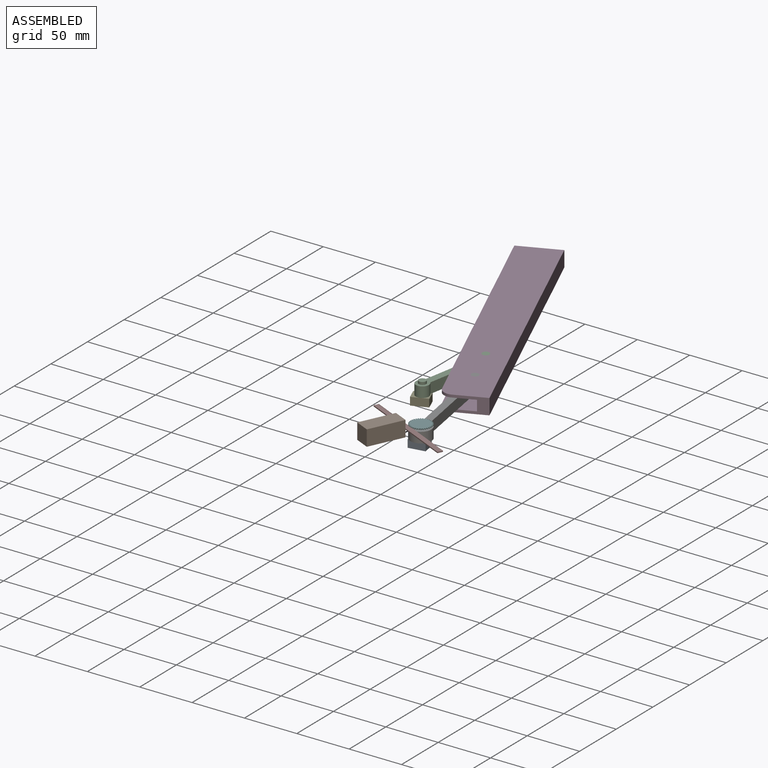
[diagram: assembled view]
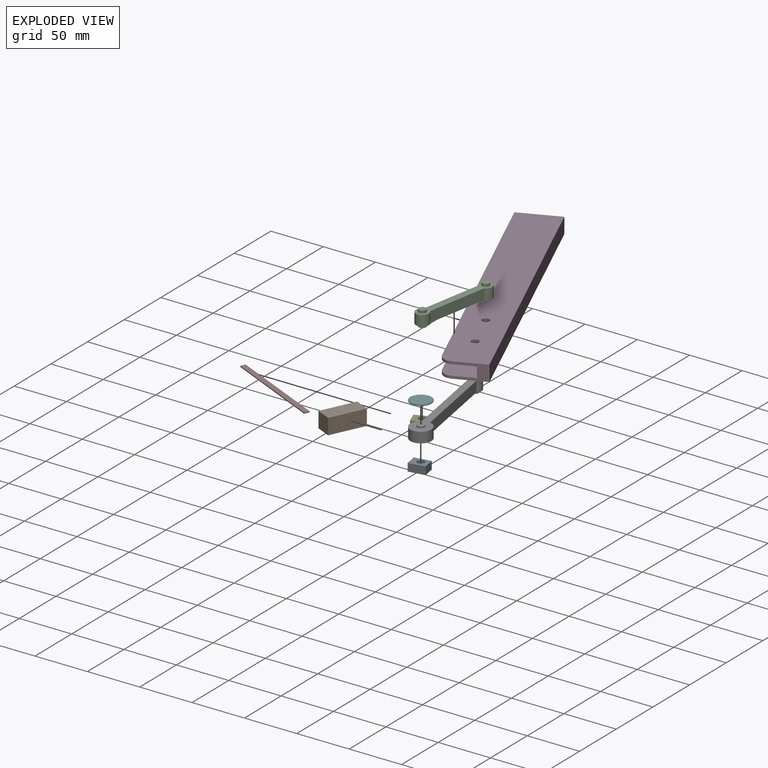
[diagram: exploded view]
GUIDED TOUR — MATED ASSEMBLY (Onshape document d15ea9145218a7e448abc43a, AutoMate assembly d15ea9145218a7e448abc43a_4488beb6bca7e58542a9b6cc_c849d50163a4104c69584336_default)

This assembly has 8 components, labeled P0..P7 below (a component is one placed occurrence of a part; the same part can appear more than once), held together by 6 mates. A mate is a constraint between two components; its type names the relative motion it leaves free:
  FASTENED — locks the two components together rigidly (no relative motion),
  REVOLUTE — leaves rotation about the listed axis free (a hinge),
  SLIDER — leaves translation along the listed axis free.
Axis/direction vectors are unit vectors and 'through' points are millimeter coordinates, both in the assembly's world frame.

MATES
  1. REVOLUTE "Revolute 2": P6 <-> P3, axis (0.000, 0.000, 1.000) through (446.84, 240.57, 74.81) mm
  2. REVOLUTE "Revolute 1": P2 <-> P3, axis (0.000, 0.000, 1.000) through (431.26, 277.41, 74.81) mm
  3. REVOLUTE "Revolute 3": P6 <-> P0, axis (0.000, 0.000, -1.000) through (464.00, 142.05, 64.81) mm
  4. FASTENED "Fastened 1": P5 <-> P6, direction (0.000, 0.000, -1.000) through (464.00, 142.05, 76.31) mm
  5. SLIDER "Slider 1": P7 <-> P1, axis (0.906, -0.423, 0.000) through (458.71, 128.70, 76.61) mm
  6. REVOLUTE "Revolute 4": P4 <-> P2, axis (0.000, 0.000, 1.000) through (418.91, 208.51, 64.81) mm

ASSEMBLY ORDER
  1. P2 — the base component [order verified]
  2. P3 [order verified]
  3. P4 [order verified]
  4. P6 [order verified]
  5. P0 [order verified]
  6. P7 [order verified]
  7. P1 [order verified]
  8. P5 [order verified]
Order-tag legend:
  [order verified] — this step's position reverses a verified removal order: the component was checked to insert without passing through the ones already placed.

Of the 8 components, 6 carry the full construction recipe — the FeatureScript program that regenerates the part's solid from scratch; the rest are supplied as boundary geometry only.
Each toured component is shown spotlighted twice — in the assembled view, then in the exploded view, where a leader line traces a displaced component back to its assembled socket (saturated green if recipe-attached, orange if geometry-only; every other component desaturated gray) — followed by its recipe or geometry summary and the mates that hold it.
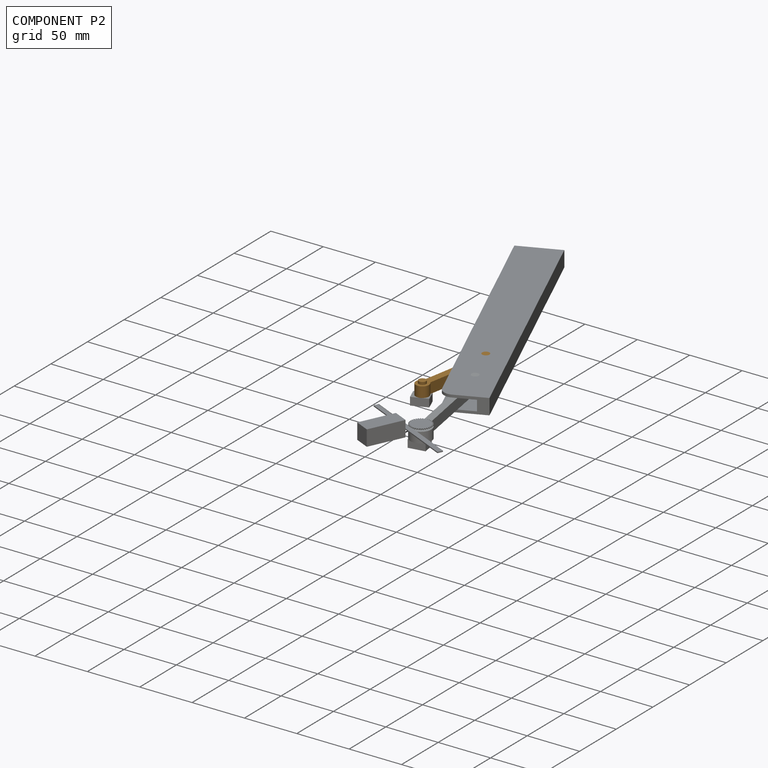
[diagram: component P2 — assembled]
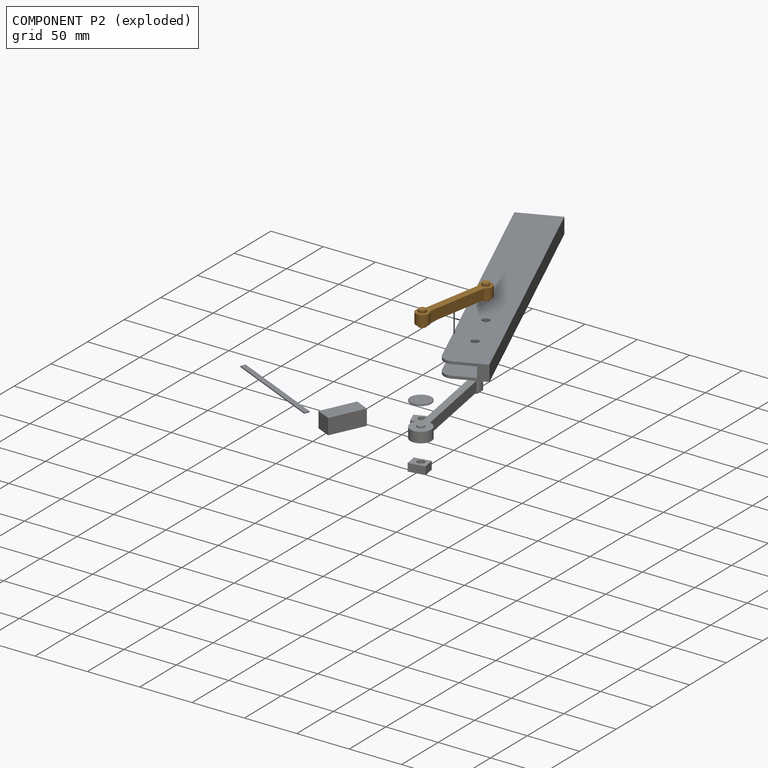
[diagram: component P2 — exploded]
COMPONENT P2 — geometry summary (no construction recipe available for this part):
  bounding box: 82.5 x 15.0 x 12.5 mm
  B-rep topology: 1 solid, 14 faces, 48 edges
  volume: 6912 mm^3 (45% of its bounding box)
  symmetry: 2-fold rotationally symmetric about the x axis; 2-fold rotationally symmetric about the y axis; 2-fold rotationally symmetric about the z axis; mirror-symmetric across its x mid-plane, y mid-plane, z mid-plane
Held by: REVOLUTE mate "Revolute 1" to P3; REVOLUTE mate "Revolute 4" to P4.
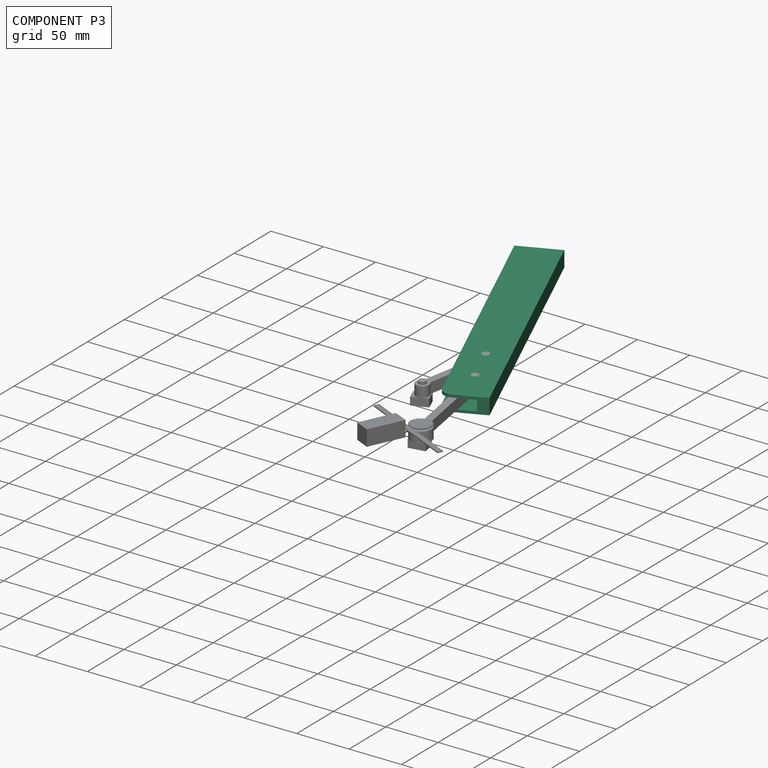
[diagram: component P3 — assembled]
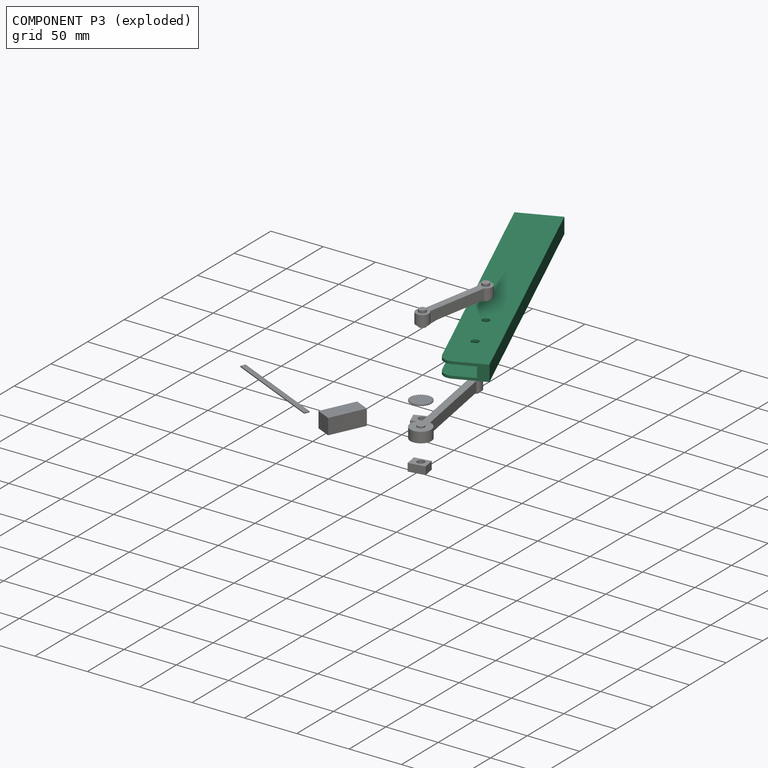
[diagram: component P3 — exploded]
COMPONENT P3 — recipe-attached (CADFS 00549046, mesh-verified: the recipe's output STEP matches this component's geometry to below the mesh-comparison resolution (tessellation chordal tolerance ~0.425 mm)).
Held by: REVOLUTE mate "Revolute 2" to P6; REVOLUTE mate "Revolute 1" to P2.
Construction recipe (FeatureScript — the CAD program that rebuilds this solid; sketch coordinates are in the units given by the * unit suffixes, e.g. mm):

FeatureScript 1511;
import(path : "onshape/std/geometry.fs", version : "1511.0");
import(path : "onshape/std/common.fs", version : "1511.0");
const mm = millimeter;
const VERTEX = EntityType.VERTEX;
const EDGE = EntityType.EDGE;
const FACE = EntityType.FACE;
const BODY = EntityType.BODY;
function v(x, y){return vector(x, y);}
function OD(order){return orderDisambiguation(order);}
function OSD(set){return originalSetDisambiguation(set);}
function TD(topology){return topologyDisambiguation(topology);}
function TDD(query){return trueDependencyDisambiguation(query);}
function sQuery(a, b, c) {return sketchEntityQuery(a, b, c);}

annotation { "Feature Type Name" : "Feature", "Feature Type Description" : "" }
export const myFeature = defineFeature(function(context is Context, id is Id, definition is map)
    precondition{}
    {
        {
            var Q0;
            Q0=qCreatedBy(makeId("Top.planeOp"),FACE);
            var sketch = newSketch(context, id + "F0", { "sketchPlane" : qUnion([Q0])});
            skLineSegment(sketch, "E0", {"start": v(-120.93, 67.52) * mm, "end": v(159.07, 67.52) * mm});
            skLineSegment(sketch, "E1", {"start": v(-120.93, 67.52) * mm, "end": v(-120.93, 27.52) * mm});
            skLineSegment(sketch, "E2", {"start": v(-120.93, 27.52) * mm, "end": v(159.07, 27.52) * mm});
            skLineSegment(sketch, "E3", {"start": v(159.07, 27.52) * mm, "end": v(159.07, 67.52) * mm});
            skLineSegment(sketch, "E4", {"start": v(39.07, 27.52) * mm, "end": v(39.07, 57.52) * mm});
            skLineSegment(sketch, "E5", {"start": v(39.07, 57.52) * mm, "end": v(159.07, 57.52) * mm});
            skSolve(sketch);
        }
        {
            var Q0;
            {var subQ4=sQuery(id+"F0.wireOp",EDGE,"E0");Q0=makeQuery(id+"F0.imprint","IMPRINT",FACE,{"disambiguationData":[TD([[makeQuery(id+"F0.imprint","IMPRINT",EDGE,{"derivedFrom":subQ4}),-1.0]])]});}
            extrude(context, id + "F1", {"entities" : qUnion([Q0]), "depth" : 15 * mm, "offsetDistance" : 25 * mm});
        }
        {
            var Q0;
            {var subQ3=sQuery(id+"F0.wireOp",EDGE,"E4");Q0=makeQuery(id+"F0.imprint","IMPRINT",FACE,{"disambiguationData":[TD([[makeQuery(id+"F0.imprint","IMPRINT",EDGE,{"derivedFrom":subQ3}),-1.0]])]});}
            extrude(context, id + "F2", {"entities" : qUnion([Q0]), "operationType" : NewBodyOperationType.ADD, "depth" : 2.5 * mm, "offsetDistance" : 25 * mm});
        }
        {
            var Q0;
            Q0=makeQuery(id+"F1.opExtrude","SWEPT_FACE",FACE,{"disambiguationData":[OSD([sQuery(id+"F0.wireOp",EDGE,"E5")])]});
            var sketch = newSketch(context, id + "F3", { "sketchPlane" : qUnion([Q0])});
            skLineSegment(sketch, "E6", {"start": v(159.07, 15) * mm, "end": v(159.07, 12.5) * mm});
            skLineSegment(sketch, "E7", {"start": v(159.07, 12.5) * mm, "end": v(39.07, 12.5) * mm});
            skLineSegment(sketch, "E8", {"start": v(39.07, 12.5) * mm, "end": v(39.07, 15) * mm});
            skLineSegment(sketch, "E9", {"start": v(39.07, 15) * mm, "end": v(159.07, 15) * mm});
            skLineSegment(sketch, "E10", {"start": v(39.07, 15) * mm, "end": v(159.07, 15) * mm, "construction": true});
            skSolve(sketch);
        }
        {
            var Q0;
            Q0=makeQuery(id+"F3.imprint","IMPRINT",FACE,{"disambiguationData":[TD([[makeQuery(id+"F3.imprint","IMPRINT",EDGE,{"derivedFrom":sQuery(id+"F3.wireOp",EDGE,"E6")}),-1.0]])]});
            extrude(context, id + "F4", {"entities" : qUnion([Q0]), "operationType" : NewBodyOperationType.ADD, "depth" : 30 * mm, "offsetDistance" : 25 * mm});
        }
        {
            var Q0;
            Q0=makeQuery(id+"F4.opExtrude","CAP_EDGE",EDGE,{"disambiguationData":[OSD([sQuery(id+"F3.wireOp",EDGE,"E6")])],"isStart":false});
            var Q1;
            Q1=makeQuery(id+"F2.opExtrude","SWEPT_EDGE",EDGE,{"disambiguationData":[OSD([sQuery(id+"F0.wireOp",EDGE,"E2"),sQuery(id+"F0.wireOp",EDGE,"E3")])]});
            fillet(context, id + "F5", {"entities" : qUnion([Q0, Q1]), "radius" : 10 * mm, "tangentPropagation" : true, "allowEdgeOverflow" : false});
        }
        {
            var Q0;
            Q0=makeQuery(id+"F4.boolean.opBoolean","MERGE",FACE,{"derivedFrom":[makeQuery(id+"F1.opExtrude","CAP_FACE",FACE,{"disambiguationData":[OSD([sQuery(id+"F0.wireOp",EDGE,"E0"),sQuery(id+"F0.wireOp",EDGE,"E1"),sQuery(id+"F0.wireOp",EDGE,"E2"),sQuery(id+"F0.wireOp",EDGE,"E3"),sQuery(id+"F0.wireOp",EDGE,"E4"),sQuery(id+"F0.wireOp",EDGE,"E5")])],"isStart":false}),makeQuery(id+"F4.opExtrude","SWEPT_FACE",FACE,{"disambiguationData":[OSD([sQuery(id+"F3.wireOp",EDGE,"E9")])]})]});
            var sketch = newSketch(context, id + "F6", { "sketchPlane" : qUnion([Q0])});
            skCircle(sketch, "E11", {"center": v(79.07, 47.52) * mm, "radius": 3.5 * mm});
            skCircle(sketch, "E12", {"center": v(119.07, 47.52) * mm, "radius": 3.5 * mm});
            skSolve(sketch);
        }
        {
            var Q0;
            Q0 = qSketchRegion(id + "F6", true);
            extrude(context, id + "F7", {"entities" : qUnion([Q0]), "operationType" : NewBodyOperationType.REMOVE, "oppositeDirection" : true, "depth" : 25 * mm, "offsetDistance" : 25 * mm});
        }
    });
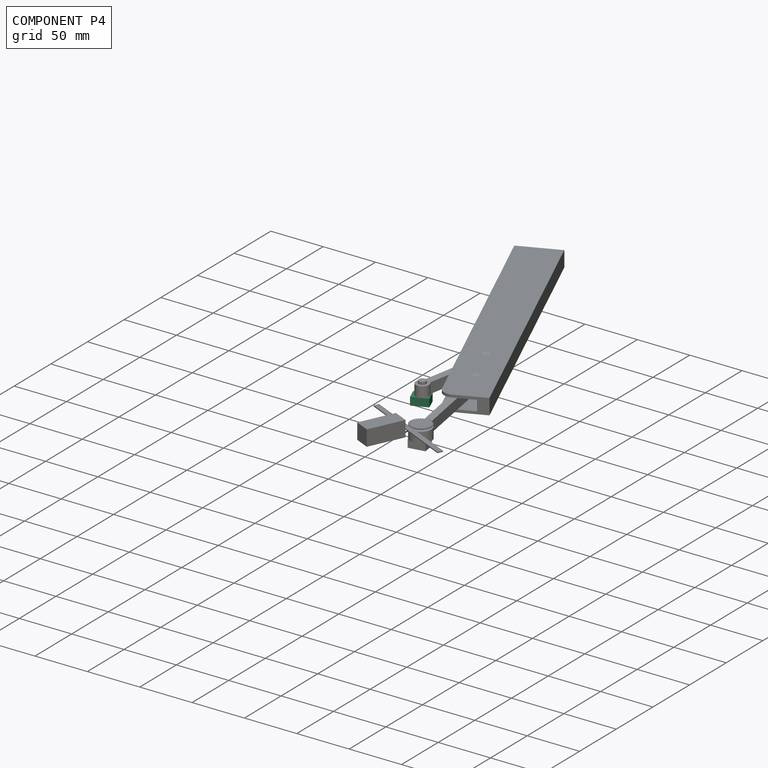
[diagram: component P4 — assembled]
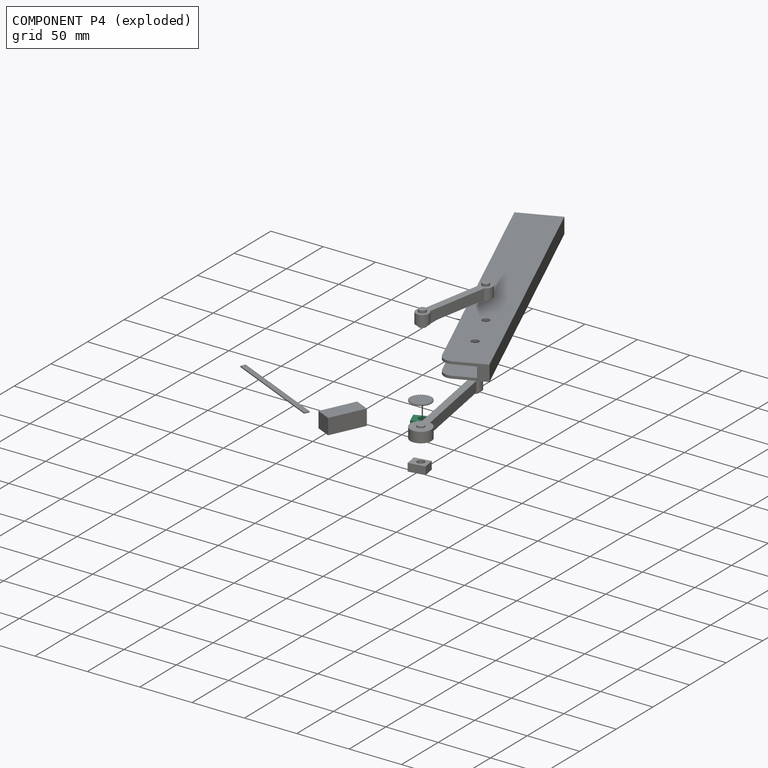
[diagram: component P4 — exploded]
COMPONENT P4 — same part as P0 (CADFS 00549053); its construction recipe is shown at P0.
Held by: REVOLUTE mate "Revolute 4" to P2.
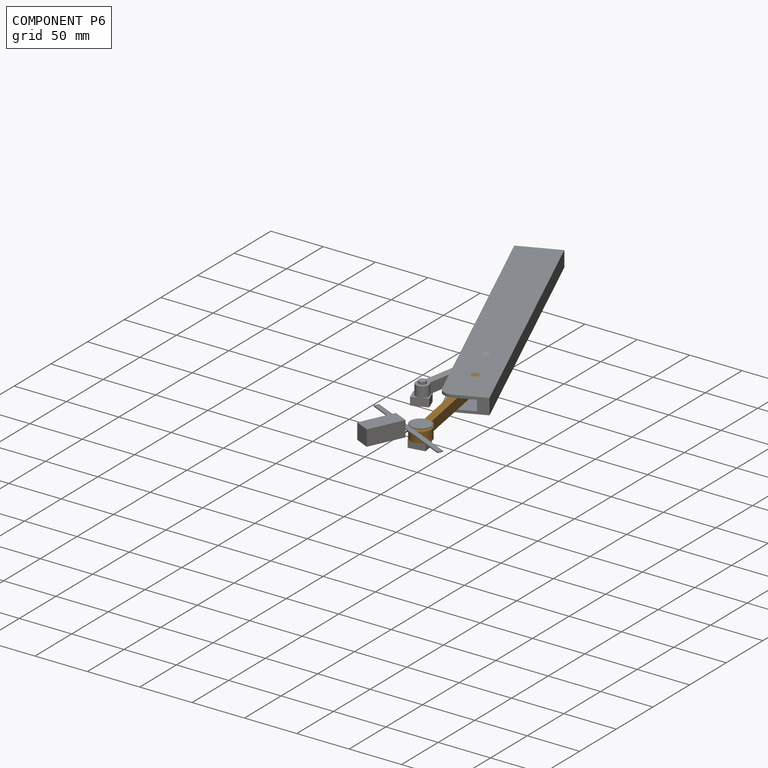
[diagram: component P6 — assembled]
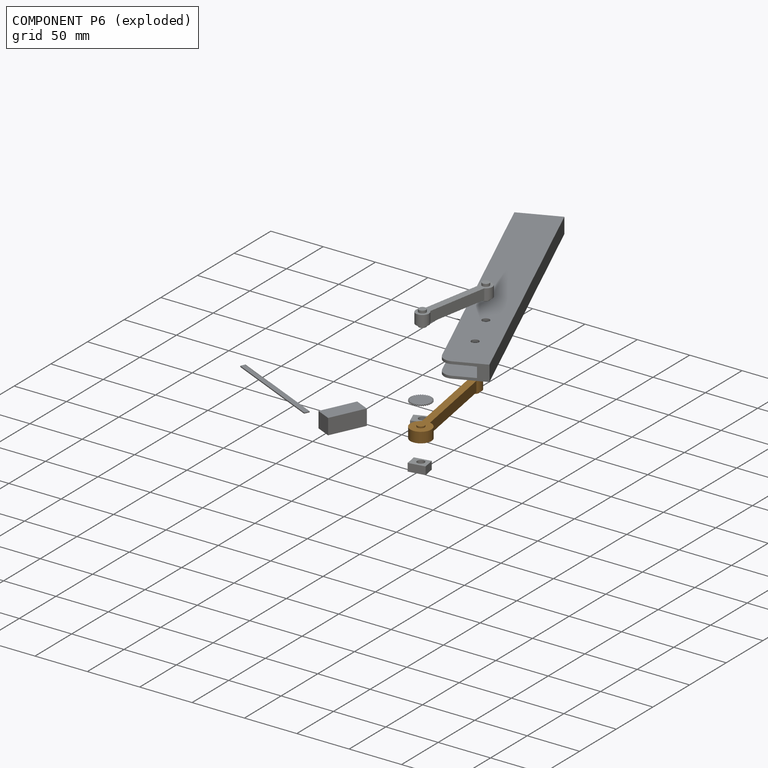
[diagram: component P6 — exploded]
COMPONENT P6 — geometry summary (no construction recipe available for this part):
  bounding box: 116.2 x 20.0 x 15.0 mm
  B-rep topology: 1 solid, 14 faces, 48 edges
  volume: 10616 mm^3 (30% of its bounding box)
  symmetry: mirror-symmetric across its y mid-plane
Held by: REVOLUTE mate "Revolute 2" to P3; REVOLUTE mate "Revolute 3" to P0; FASTENED mate "Fastened 1" to P5.
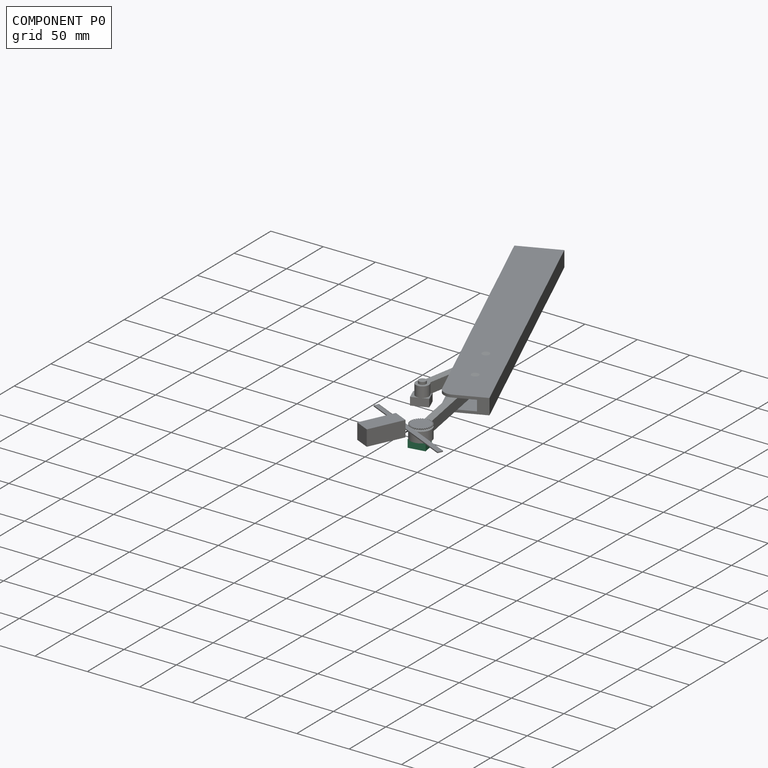
[diagram: component P0 — assembled]
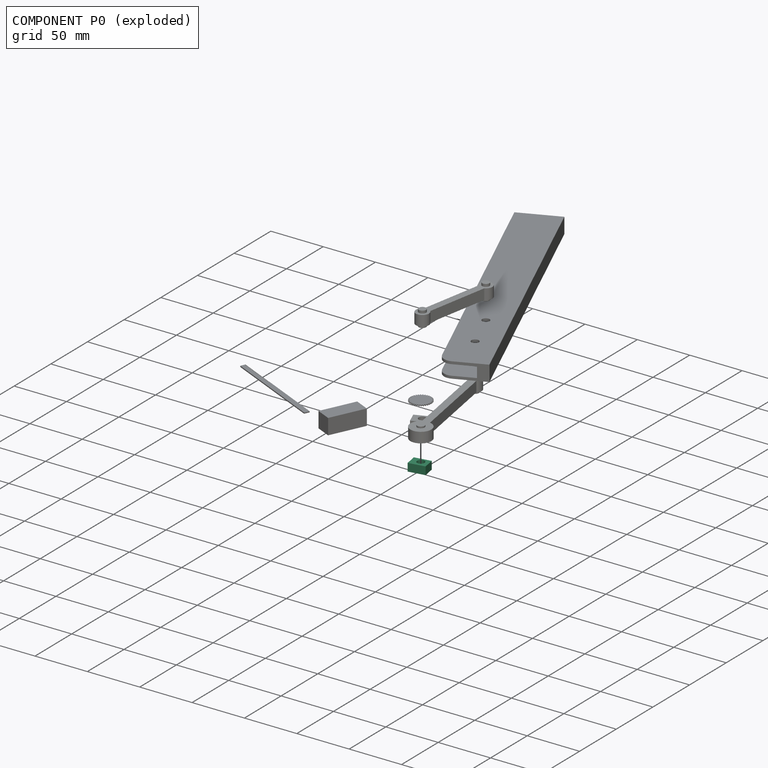
[diagram: component P0 — exploded]
COMPONENT P0 — recipe-attached (CADFS 00549053, mesh-verified: the recipe's output STEP matches this component's geometry to below the mesh-comparison resolution (tessellation chordal tolerance ~0.031 mm)).
Held by: REVOLUTE mate "Revolute 3" to P6.
Construction recipe (FeatureScript — the CAD program that rebuilds this solid; sketch coordinates are in the units given by the * unit suffixes, e.g. mm):

FeatureScript 1511;
import(path : "onshape/std/geometry.fs", version : "1511.0");
import(path : "onshape/std/common.fs", version : "1511.0");
const mm = millimeter;
const VERTEX = EntityType.VERTEX;
const EDGE = EntityType.EDGE;
const FACE = EntityType.FACE;
const BODY = EntityType.BODY;
function v(x, y){return vector(x, y);}
function OD(order){return orderDisambiguation(order);}
function OSD(set){return originalSetDisambiguation(set);}
function TD(topology){return topologyDisambiguation(topology);}
function TDD(query){return trueDependencyDisambiguation(query);}
function sQuery(a, b, c) {return sketchEntityQuery(a, b, c);}

annotation { "Feature Type Name" : "Feature", "Feature Type Description" : "" }
export const myFeature = defineFeature(function(context is Context, id is Id, definition is map)
    precondition{}
    {
        {
            var Q0;
            Q0=qCreatedBy(makeId("Top.planeOp"),FACE);
            var sketch = newSketch(context, id + "F0", { "sketchPlane" : qUnion([Q0])});
            skCircle(sketch, "E0", {"center": v(-34.33, 24.44) * mm, "radius": 3.5 * mm});
            skLineSegment(sketch, "E1.bottom", {"start": v(-42.87, 29.68) * mm, "end": v(-27.35, 29.68) * mm});
            skLineSegment(sketch, "E1.top", {"start": v(-42.87, 18.23) * mm, "end": v(-27.35, 18.23) * mm});
            skLineSegment(sketch, "E1.left", {"start": v(-42.87, 29.68) * mm, "end": v(-42.87, 18.23) * mm});
            skLineSegment(sketch, "E1.right", {"start": v(-27.35, 29.68) * mm, "end": v(-27.35, 18.23) * mm});
            skSolve(sketch);
        }
        {
            var Q0;
            Q0=makeQuery(id+"F0.imprint","IMPRINT",FACE,{"disambiguationData":[TD([[makeQuery(id+"F0.imprint","IMPRINT",EDGE,{"derivedFrom":sQuery(id+"F0.wireOp",EDGE,"E0")}),-1.0]])]});
            extrude(context, id + "F1", {"entities" : qUnion([Q0]), "endBound" : BoundingType.SYMMETRIC, "depth" : 7.5 * mm, "offsetDistance" : 25 * mm});
        }
    });
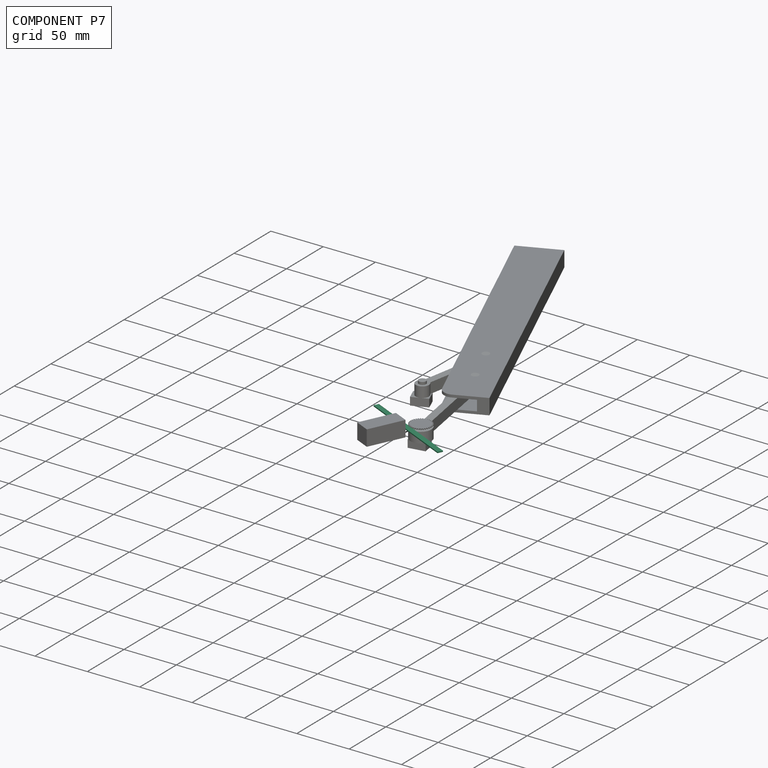
[diagram: component P7 — assembled]
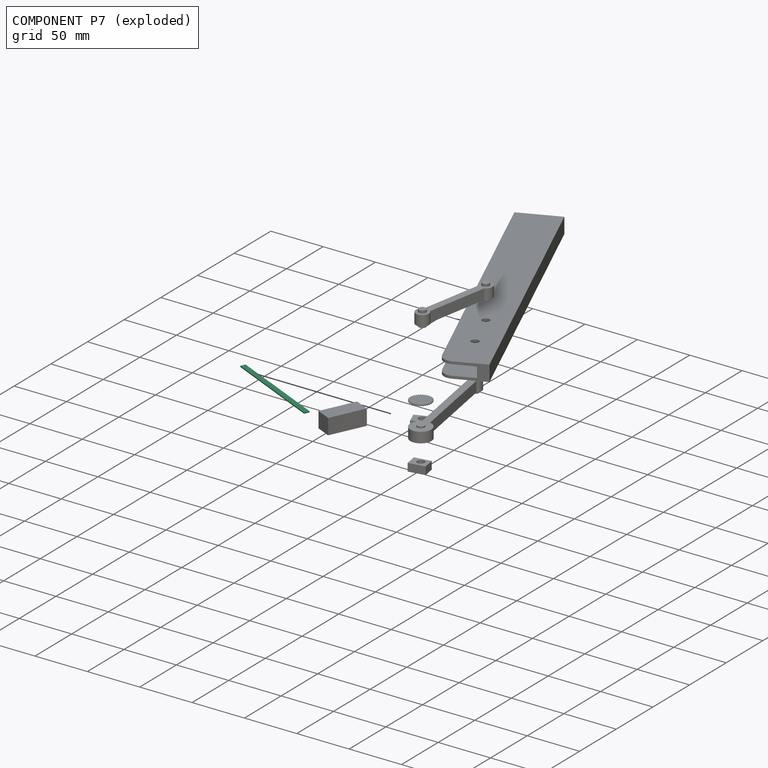
[diagram: component P7 — exploded]
COMPONENT P7 — recipe-attached (CADFS 00549051, mesh-verified: the recipe's output STEP matches this component's geometry to below the mesh-comparison resolution (tessellation chordal tolerance ~0.15 mm)).
Held by: SLIDER mate "Slider 1" to P1.
Construction recipe (FeatureScript — the CAD program that rebuilds this solid; sketch coordinates are in the units given by the * unit suffixes, e.g. mm):

FeatureScript 1511;
import(path : "onshape/std/geometry.fs", version : "1511.0");
import(path : "onshape/std/common.fs", version : "1511.0");
const mm = millimeter;
const VERTEX = EntityType.VERTEX;
const EDGE = EntityType.EDGE;
const FACE = EntityType.FACE;
const BODY = EntityType.BODY;
function v(x, y){return vector(x, y);}
function OD(order){return orderDisambiguation(order);}
function OSD(set){return originalSetDisambiguation(set);}
function TD(topology){return topologyDisambiguation(topology);}
function TDD(query){return trueDependencyDisambiguation(query);}
function sQuery(a, b, c) {return sketchEntityQuery(a, b, c);}

annotation { "Feature Type Name" : "Feature", "Feature Type Description" : "" }
export const myFeature = defineFeature(function(context is Context, id is Id, definition is map)
    precondition{}
    {
        {
            var Q0;
            Q0=qCreatedBy(makeId("Top.planeOp"),FACE);
            var sketch = newSketch(context, id + "F0", { "sketchPlane" : qUnion([Q0])});
            skLineSegment(sketch, "E0.bottom", {"start": v(-60.96, 22.46) * mm, "end": v(-55.96, 22.46) * mm});
            skLineSegment(sketch, "E0.top", {"start": v(-60.96, -77.54) * mm, "end": v(-55.96, -77.54) * mm});
            skLineSegment(sketch, "E0.left", {"start": v(-60.96, 22.46) * mm, "end": v(-60.96, -77.54) * mm});
            skLineSegment(sketch, "E0.right", {"start": v(-55.96, 22.46) * mm, "end": v(-55.96, -77.54) * mm});
            skSolve(sketch);
        }
        {
            var Q0;
            Q0 = qSketchRegion(id + "F0", true);
            extrude(context, id + "F1", {"entities" : qUnion([Q0]), "endBound" : BoundingType.SYMMETRIC, "depth" : 1 * mm, "offsetDistance" : 25 * mm});
        }
        {
            var Q0;
            Q0=makeQuery(id+"F1.opExtrude","CAP_FACE",FACE,{"disambiguationData":[OSD([sQuery(id+"F0.wireOp",EDGE,"E0.bottom"),sQuery(id+"F0.wireOp",EDGE,"E0.top"),sQuery(id+"F0.wireOp",EDGE,"E0.left"),sQuery(id+"F0.wireOp",EDGE,"E0.right")])],"isStart":false});
            var sketch = newSketch(context, id + "F2", { "sketchPlane" : qUnion([Q0])});
            skLineSegment(sketch, "E1", {"start": v(-56.84, 22.18) * mm, "end": v(-56.84, 21.6) * mm});
            skLineSegment(sketch, "E2", {"start": v(-56.84, 21.6) * mm, "end": v(-55.96, 21.32) * mm});
            skLineSegment(sketch, "E3", {"start": v(-56.84, 22.18) * mm, "end": v(-55.96, 22.45) * mm});
            skLineSegment(sketch, "E4.MirrorCS", {"start": v(-56.84, 21.06) * mm, "end": v(-55.96, 21.32) * mm});
            skLineSegment(sketch, "E5.MirrorCS", {"start": v(-56.84, 20.47) * mm, "end": v(-56.84, 21.06) * mm});
            skLineSegment(sketch, "E6.MirrorCS", {"start": v(-56.84, 20.47) * mm, "end": v(-55.96, 20.2) * mm});
            skLineSegment(sketch, "E7.MirrorCS", {"start": v(-56.84, 19.93) * mm, "end": v(-55.96, 20.2) * mm});
            skLineSegment(sketch, "E8.MirrorCS", {"start": v(-56.84, 19.93) * mm, "end": v(-56.84, 19.34) * mm});
            skLineSegment(sketch, "E9.MirrorCS", {"start": v(-56.84, 19.34) * mm, "end": v(-55.96, 19.08) * mm});
            skLineSegment(sketch, "E10.MirrorCS", {"start": v(-56.84, 18.81) * mm, "end": v(-55.96, 19.08) * mm});
            skLineSegment(sketch, "E11.MirrorCS", {"start": v(-56.84, 18.22) * mm, "end": v(-56.84, 18.81) * mm});
            skLineSegment(sketch, "E12.MirrorCS", {"start": v(-56.84, 18.22) * mm, "end": v(-55.96, 17.95) * mm});
            skLineSegment(sketch, "E13.MirrorCS", {"start": v(-56.84, 14.85) * mm, "end": v(-55.96, 14.58) * mm});
            skLineSegment(sketch, "E14.MirrorCS", {"start": v(-56.84, 13.73) * mm, "end": v(-55.96, 13.46) * mm});
            skLineSegment(sketch, "E15.MirrorCS", {"start": v(-56.84, 15.97) * mm, "end": v(-55.96, 15.7) * mm});
            skLineSegment(sketch, "E16.MirrorCS", {"start": v(-56.84, 14.32) * mm, "end": v(-55.96, 14.58) * mm});
            skLineSegment(sketch, "E17.MirrorCS", {"start": v(-56.84, 13.73) * mm, "end": v(-56.84, 14.32) * mm});
            skLineSegment(sketch, "E18.MirrorCS", {"start": v(-56.84, 17.1) * mm, "end": v(-55.96, 16.83) * mm});
            skLineSegment(sketch, "E19.MirrorCS", {"start": v(-56.84, 15.97) * mm, "end": v(-56.84, 16.56) * mm});
            skLineSegment(sketch, "E20.MirrorCS", {"start": v(-56.84, 15.44) * mm, "end": v(-55.96, 15.7) * mm});
            skLineSegment(sketch, "E21.MirrorCS", {"start": v(-56.84, 17.69) * mm, "end": v(-55.96, 17.95) * mm});
            skLineSegment(sketch, "E22.MirrorCS", {"start": v(-56.84, 16.56) * mm, "end": v(-55.96, 16.83) * mm});
            skLineSegment(sketch, "E23.MirrorCS", {"start": v(-56.84, 15.44) * mm, "end": v(-56.84, 14.85) * mm});
            skLineSegment(sketch, "E24.MirrorCS", {"start": v(-56.84, 17.69) * mm, "end": v(-56.84, 17.1) * mm});
            skLineSegment(sketch, "E25.MirrorCS", {"start": v(-56.84, 9.23) * mm, "end": v(-56.84, 9.82) * mm});
            skLineSegment(sketch, "E26.MirrorCS", {"start": v(-56.84, 5.86) * mm, "end": v(-55.96, 5.6) * mm});
            skLineSegment(sketch, "E27.MirrorCS", {"start": v(-56.84, 4.74) * mm, "end": v(-55.96, 4.47) * mm});
            skLineSegment(sketch, "E28.MirrorCS", {"start": v(-56.84, 5.33) * mm, "end": v(-55.96, 5.6) * mm});
            skLineSegment(sketch, "E29.MirrorCS", {"start": v(-56.84, 4.74) * mm, "end": v(-56.84, 5.33) * mm});
            skLineSegment(sketch, "E30.MirrorCS", {"start": v(-56.84, 12.6) * mm, "end": v(-55.96, 12.34) * mm});
            skLineSegment(sketch, "E31.MirrorCS", {"start": v(-56.84, 10.95) * mm, "end": v(-55.96, 11.21) * mm});
            skLineSegment(sketch, "E32.MirrorCS", {"start": v(-56.84, 13.2) * mm, "end": v(-55.96, 13.46) * mm});
            skLineSegment(sketch, "E33.MirrorCS", {"start": v(-56.84, 11.48) * mm, "end": v(-55.96, 11.21) * mm});
            skLineSegment(sketch, "E34.MirrorCS", {"start": v(-56.84, 9.82) * mm, "end": v(-55.96, 10.1) * mm});
            skLineSegment(sketch, "E35.MirrorCS", {"start": v(-56.84, 10.36) * mm, "end": v(-55.96, 10.1) * mm});
            skLineSegment(sketch, "E36.MirrorCS", {"start": v(-56.84, 6.45) * mm, "end": v(-55.96, 6.72) * mm});
            skLineSegment(sketch, "E37.MirrorCS", {"start": v(-56.84, 7.58) * mm, "end": v(-55.96, 7.84) * mm});
            skLineSegment(sketch, "E38.MirrorCS", {"start": v(-56.84, 6.99) * mm, "end": v(-55.96, 6.72) * mm});
            skLineSegment(sketch, "E39.MirrorCS", {"start": v(-56.84, 8.11) * mm, "end": v(-55.96, 7.84) * mm});
            skLineSegment(sketch, "E40.MirrorCS", {"start": v(-56.84, 10.95) * mm, "end": v(-56.84, 10.36) * mm});
            skLineSegment(sketch, "E41.MirrorCS", {"start": v(-56.84, 12.07) * mm, "end": v(-55.96, 12.34) * mm});
            skLineSegment(sketch, "E42.MirrorCS", {"start": v(-56.84, 8.7) * mm, "end": v(-56.84, 8.11) * mm});
            skLineSegment(sketch, "E43.MirrorCS", {"start": v(-56.84, 8.7) * mm, "end": v(-55.96, 8.97) * mm});
            skLineSegment(sketch, "E44.MirrorCS", {"start": v(-56.84, 6.99) * mm, "end": v(-56.84, 7.58) * mm});
            skLineSegment(sketch, "E45.MirrorCS", {"start": v(-56.84, 9.23) * mm, "end": v(-55.96, 8.97) * mm});
            skLineSegment(sketch, "E46.MirrorCS", {"start": v(-56.84, 6.45) * mm, "end": v(-56.84, 5.86) * mm});
            skLineSegment(sketch, "E47.MirrorCS", {"start": v(-56.84, 11.48) * mm, "end": v(-56.84, 12.07) * mm});
            skLineSegment(sketch, "E48.MirrorCS", {"start": v(-56.84, 13.2) * mm, "end": v(-56.84, 12.6) * mm});
            skLineSegment(sketch, "E49.MirrorCS", {"start": v(-56.84, -11.52) * mm, "end": v(-56.84, -12.1) * mm});
            skLineSegment(sketch, "E50.MirrorCS", {"start": v(-56.84, -9.86) * mm, "end": v(-55.96, -10.13) * mm});
            skLineSegment(sketch, "E51.MirrorCS", {"start": v(-56.84, -10.4) * mm, "end": v(-55.96, -10.13) * mm});
            skLineSegment(sketch, "E52.MirrorCS", {"start": v(-56.84, -10.99) * mm, "end": v(-56.84, -10.4) * mm});
            skLineSegment(sketch, "E53.MirrorCS", {"start": v(-56.84, -11.52) * mm, "end": v(-55.96, -11.25) * mm});
            skLineSegment(sketch, "E54.MirrorCS", {"start": v(-56.84, -10.99) * mm, "end": v(-55.96, -11.25) * mm});
            skLineSegment(sketch, "E55.MirrorCS", {"start": v(-56.84, -12.1) * mm, "end": v(-55.96, -12.38) * mm});
            skLineSegment(sketch, "E56.MirrorCS", {"start": v(-56.84, -13.23) * mm, "end": v(-55.96, -13.5) * mm});
            skLineSegment(sketch, "E57.MirrorCS", {"start": v(-56.84, 2.5) * mm, "end": v(-55.96, 2.23) * mm});
            skLineSegment(sketch, "E58.MirrorCS", {"start": v(-56.84, -6.5) * mm, "end": v(-55.96, -6.76) * mm});
            skLineSegment(sketch, "E59.MirrorCS", {"start": v(-56.84, -9.27) * mm, "end": v(-56.84, -9.86) * mm});
            skLineSegment(sketch, "E60.MirrorCS", {"start": v(-56.84, -12.64) * mm, "end": v(-55.96, -12.38) * mm});
            skLineSegment(sketch, "E61.MirrorCS", {"start": v(-56.84, 4.2) * mm, "end": v(-55.96, 4.47) * mm});
            skLineSegment(sketch, "E62.MirrorCS", {"start": v(-56.84, 0.25) * mm, "end": v(-55.96, -0.02) * mm});
            skLineSegment(sketch, "E63.MirrorCS", {"start": v(-56.84, -13.23) * mm, "end": v(-56.84, -12.64) * mm});
            skLineSegment(sketch, "E64.MirrorCS", {"start": v(-56.84, -5.37) * mm, "end": v(-55.96, -5.64) * mm});
            skLineSegment(sketch, "E65.MirrorCS", {"start": v(-56.84, -0.29) * mm, "end": v(-55.96, -0.02) * mm});
            skLineSegment(sketch, "E66.MirrorCS", {"start": v(-56.84, 4.2) * mm, "end": v(-56.84, 3.62) * mm});
            skLineSegment(sketch, "E67.MirrorCS", {"start": v(-56.84, -3.12) * mm, "end": v(-55.96, -3.39) * mm});
            skLineSegment(sketch, "E68.MirrorCS", {"start": v(-56.84, -0.29) * mm, "end": v(-56.84, -0.88) * mm});
            skLineSegment(sketch, "E69.MirrorCS", {"start": v(-56.84, 1.96) * mm, "end": v(-55.96, 2.23) * mm});
            skLineSegment(sketch, "E70.MirrorCS", {"start": v(-56.84, -2) * mm, "end": v(-55.96, -2.27) * mm});
            skLineSegment(sketch, "E71.MirrorCS", {"start": v(-56.84, -7.62) * mm, "end": v(-55.96, -7.88) * mm});
            skLineSegment(sketch, "E72.MirrorCS", {"start": v(-56.84, -7.03) * mm, "end": v(-56.84, -7.62) * mm});
            skLineSegment(sketch, "E73.MirrorCS", {"start": v(-56.84, -2.53) * mm, "end": v(-56.84, -3.12) * mm});
            skLineSegment(sketch, "E74.MirrorCS", {"start": v(-56.84, -0.88) * mm, "end": v(-55.96, -1.14) * mm});
            skLineSegment(sketch, "E75.MirrorCS", {"start": v(-56.84, -8.15) * mm, "end": v(-55.96, -7.88) * mm});
            skLineSegment(sketch, "E76.MirrorCS", {"start": v(-56.84, 1.96) * mm, "end": v(-56.84, 1.37) * mm});
            skLineSegment(sketch, "E77.MirrorCS", {"start": v(-56.84, 3.62) * mm, "end": v(-55.96, 3.35) * mm});
            skLineSegment(sketch, "E78.MirrorCS", {"start": v(-56.84, -2) * mm, "end": v(-56.84, -1.4) * mm});
            skLineSegment(sketch, "E79.MirrorCS", {"start": v(-56.84, -4.78) * mm, "end": v(-56.84, -5.37) * mm});
            skLineSegment(sketch, "E80.MirrorCS", {"start": v(-56.84, -2.53) * mm, "end": v(-55.96, -2.27) * mm});
            skLineSegment(sketch, "E81.MirrorCS", {"start": v(-56.84, -8.74) * mm, "end": v(-56.84, -8.15) * mm});
            skLineSegment(sketch, "E82.MirrorCS", {"start": v(-56.84, -1.4) * mm, "end": v(-55.96, -1.14) * mm});
            skLineSegment(sketch, "E83.MirrorCS", {"start": v(-56.84, -3.66) * mm, "end": v(-55.96, -3.39) * mm});
            skLineSegment(sketch, "E84.MirrorCS", {"start": v(-56.84, -7.03) * mm, "end": v(-55.96, -6.76) * mm});
            skLineSegment(sketch, "E85.MirrorCS", {"start": v(-56.84, -4.25) * mm, "end": v(-56.84, -3.66) * mm});
            skLineSegment(sketch, "E86.MirrorCS", {"start": v(-56.84, 2.5) * mm, "end": v(-56.84, 3.08) * mm});
            skLineSegment(sketch, "E87.MirrorCS", {"start": v(-56.84, -6.5) * mm, "end": v(-56.84, -5.9) * mm});
            skLineSegment(sketch, "E88.MirrorCS", {"start": v(-56.84, -4.25) * mm, "end": v(-55.96, -4.51) * mm});
            skLineSegment(sketch, "E89.MirrorCS", {"start": v(-56.84, 0.84) * mm, "end": v(-55.96, 1.1) * mm});
            skLineSegment(sketch, "E90.MirrorCS", {"start": v(-56.84, -8.74) * mm, "end": v(-55.96, -9) * mm});
            skLineSegment(sketch, "E91.MirrorCS", {"start": v(-56.84, -5.9) * mm, "end": v(-55.96, -5.64) * mm});
            skLineSegment(sketch, "E92.MirrorCS", {"start": v(-56.84, -4.78) * mm, "end": v(-55.96, -4.51) * mm});
            skLineSegment(sketch, "E93.MirrorCS", {"start": v(-56.84, 3.08) * mm, "end": v(-55.96, 3.35) * mm});
            skLineSegment(sketch, "E94.MirrorCS", {"start": v(-56.84, 0.25) * mm, "end": v(-56.84, 0.84) * mm});
            skLineSegment(sketch, "E95.MirrorCS", {"start": v(-56.84, -9.27) * mm, "end": v(-55.96, -9) * mm});
            skLineSegment(sketch, "E96.MirrorCS", {"start": v(-56.84, 1.37) * mm, "end": v(-55.96, 1.1) * mm});
            skSolve(sketch);
        }
        {
            var Q0;
            Q0=makeQuery(id+"F2.imprint","IMPRINT",FACE,{"disambiguationData":[TD([[makeQuery(id+"F2.imprint","IMPRINT",EDGE,{"derivedFrom":sQuery(id+"F2.wireOp",EDGE,"E1")}),1.0]])]});
            var Q1;
            {var subQ0=sQuery(id+"F2.wireOp",EDGE,"E4.MirrorCS");Q1=makeQuery(id+"F2.imprint","IMPRINT",FACE,{"disambiguationData":[TD([[makeQuery(id+"F2.imprint","IMPRINT",EDGE,{"derivedFrom":subQ0}),-1.0]])]});}
            var Q2;
            {var subQ0=sQuery(id+"F2.wireOp",EDGE,"E7.MirrorCS");Q2=makeQuery(id+"F2.imprint","IMPRINT",FACE,{"disambiguationData":[TD([[makeQuery(id+"F2.imprint","IMPRINT",EDGE,{"derivedFrom":subQ0}),-1.0]])]});}
            var Q3;
            {var subQ0=sQuery(id+"F2.wireOp",EDGE,"E10.MirrorCS");Q3=makeQuery(id+"F2.imprint","IMPRINT",FACE,{"disambiguationData":[TD([[makeQuery(id+"F2.imprint","IMPRINT",EDGE,{"derivedFrom":subQ0}),-1.0]])]});}
            var Q4;
            {var subQ0=sQuery(id+"F2.wireOp",EDGE,"E18.MirrorCS");Q4=makeQuery(id+"F2.imprint","IMPRINT",FACE,{"disambiguationData":[TD([[makeQuery(id+"F2.imprint","IMPRINT",EDGE,{"derivedFrom":subQ0}),1.0]])]});}
            var Q5;
            {var subQ0=sQuery(id+"F2.wireOp",EDGE,"E15.MirrorCS");Q5=makeQuery(id+"F2.imprint","IMPRINT",FACE,{"disambiguationData":[TD([[makeQuery(id+"F2.imprint","IMPRINT",EDGE,{"derivedFrom":subQ0}),1.0]])]});}
            var Q6;
            {var subQ0=sQuery(id+"F2.wireOp",EDGE,"E13.MirrorCS");Q6=makeQuery(id+"F2.imprint","IMPRINT",FACE,{"disambiguationData":[TD([[makeQuery(id+"F2.imprint","IMPRINT",EDGE,{"derivedFrom":subQ0}),1.0]])]});}
            var Q7;
            {var subQ0=sQuery(id+"F2.wireOp",EDGE,"E14.MirrorCS");Q7=makeQuery(id+"F2.imprint","IMPRINT",FACE,{"disambiguationData":[TD([[makeQuery(id+"F2.imprint","IMPRINT",EDGE,{"derivedFrom":subQ0}),1.0]])]});}
            var Q8;
            {var subQ0=sQuery(id+"F2.wireOp",EDGE,"E30.MirrorCS");Q8=makeQuery(id+"F2.imprint","IMPRINT",FACE,{"disambiguationData":[TD([[makeQuery(id+"F2.imprint","IMPRINT",EDGE,{"derivedFrom":subQ0}),1.0]])]});}
            var Q9;
            {var subQ0=sQuery(id+"F2.wireOp",EDGE,"E33.MirrorCS");Q9=makeQuery(id+"F2.imprint","IMPRINT",FACE,{"disambiguationData":[TD([[makeQuery(id+"F2.imprint","IMPRINT",EDGE,{"derivedFrom":subQ0}),1.0]])]});}
            var Q10;
            {var subQ0=sQuery(id+"F2.wireOp",EDGE,"E31.MirrorCS");Q10=makeQuery(id+"F2.imprint","IMPRINT",FACE,{"disambiguationData":[TD([[makeQuery(id+"F2.imprint","IMPRINT",EDGE,{"derivedFrom":subQ0}),-1.0]])]});}
            var Q11;
            Q11=makeQuery(id+"F2.imprint","IMPRINT",FACE,{"disambiguationData":[TD([[makeQuery(id+"F2.imprint","IMPRINT",EDGE,{"derivedFrom":sQuery(id+"F2.wireOp",EDGE,"E25.MirrorCS")}),-1.0]])]});
            var Q12;
            {var subQ0=sQuery(id+"F2.wireOp",EDGE,"E39.MirrorCS");Q12=makeQuery(id+"F2.imprint","IMPRINT",FACE,{"disambiguationData":[TD([[makeQuery(id+"F2.imprint","IMPRINT",EDGE,{"derivedFrom":subQ0}),1.0]])]});}
            var Q13;
            {var subQ0=sQuery(id+"F2.wireOp",EDGE,"E37.MirrorCS");Q13=makeQuery(id+"F2.imprint","IMPRINT",FACE,{"disambiguationData":[TD([[makeQuery(id+"F2.imprint","IMPRINT",EDGE,{"derivedFrom":subQ0}),-1.0]])]});}
            var Q14;
            {var subQ0=sQuery(id+"F2.wireOp",EDGE,"E26.MirrorCS");Q14=makeQuery(id+"F2.imprint","IMPRINT",FACE,{"disambiguationData":[TD([[makeQuery(id+"F2.imprint","IMPRINT",EDGE,{"derivedFrom":subQ0}),1.0]])]});}
            var Q15;
            {var subQ0=sQuery(id+"F2.wireOp",EDGE,"E27.MirrorCS");Q15=makeQuery(id+"F2.imprint","IMPRINT",FACE,{"disambiguationData":[TD([[makeQuery(id+"F2.imprint","IMPRINT",EDGE,{"derivedFrom":subQ0}),1.0]])]});}
            var Q16;
            {var subQ0=sQuery(id+"F2.wireOp",EDGE,"E61.MirrorCS");Q16=makeQuery(id+"F2.imprint","IMPRINT",FACE,{"disambiguationData":[TD([[makeQuery(id+"F2.imprint","IMPRINT",EDGE,{"derivedFrom":subQ0}),-1.0]])]});}
            var Q17;
            {var subQ0=sQuery(id+"F2.wireOp",EDGE,"E57.MirrorCS");Q17=makeQuery(id+"F2.imprint","IMPRINT",FACE,{"disambiguationData":[TD([[makeQuery(id+"F2.imprint","IMPRINT",EDGE,{"derivedFrom":subQ0}),1.0]])]});}
            var Q18;
            {var subQ0=sQuery(id+"F2.wireOp",EDGE,"E69.MirrorCS");Q18=makeQuery(id+"F2.imprint","IMPRINT",FACE,{"disambiguationData":[TD([[makeQuery(id+"F2.imprint","IMPRINT",EDGE,{"derivedFrom":subQ0}),-1.0]])]});}
            var Q19;
            {var subQ0=sQuery(id+"F2.wireOp",EDGE,"E62.MirrorCS");Q19=makeQuery(id+"F2.imprint","IMPRINT",FACE,{"disambiguationData":[TD([[makeQuery(id+"F2.imprint","IMPRINT",EDGE,{"derivedFrom":subQ0}),1.0]])]});}
            var Q20;
            {var subQ0=sQuery(id+"F2.wireOp",EDGE,"E65.MirrorCS");Q20=makeQuery(id+"F2.imprint","IMPRINT",FACE,{"disambiguationData":[TD([[makeQuery(id+"F2.imprint","IMPRINT",EDGE,{"derivedFrom":subQ0}),-1.0]])]});}
            var Q21;
            {var subQ0=sQuery(id+"F2.wireOp",EDGE,"E70.MirrorCS");Q21=makeQuery(id+"F2.imprint","IMPRINT",FACE,{"disambiguationData":[TD([[makeQuery(id+"F2.imprint","IMPRINT",EDGE,{"derivedFrom":subQ0}),1.0]])]});}
            var Q22;
            {var subQ0=sQuery(id+"F2.wireOp",EDGE,"E67.MirrorCS");Q22=makeQuery(id+"F2.imprint","IMPRINT",FACE,{"disambiguationData":[TD([[makeQuery(id+"F2.imprint","IMPRINT",EDGE,{"derivedFrom":subQ0}),1.0]])]});}
            var Q23;
            {var subQ0=sQuery(id+"F2.wireOp",EDGE,"E83.MirrorCS");Q23=makeQuery(id+"F2.imprint","IMPRINT",FACE,{"disambiguationData":[TD([[makeQuery(id+"F2.imprint","IMPRINT",EDGE,{"derivedFrom":subQ0}),-1.0]])]});}
            var Q24;
            {var subQ0=sQuery(id+"F2.wireOp",EDGE,"E64.MirrorCS");Q24=makeQuery(id+"F2.imprint","IMPRINT",FACE,{"disambiguationData":[TD([[makeQuery(id+"F2.imprint","IMPRINT",EDGE,{"derivedFrom":subQ0}),1.0]])]});}
            var Q25;
            {var subQ0=sQuery(id+"F2.wireOp",EDGE,"E58.MirrorCS");Q25=makeQuery(id+"F2.imprint","IMPRINT",FACE,{"disambiguationData":[TD([[makeQuery(id+"F2.imprint","IMPRINT",EDGE,{"derivedFrom":subQ0}),1.0]])]});}
            var Q26;
            {var subQ0=sQuery(id+"F2.wireOp",EDGE,"E71.MirrorCS");Q26=makeQuery(id+"F2.imprint","IMPRINT",FACE,{"disambiguationData":[TD([[makeQuery(id+"F2.imprint","IMPRINT",EDGE,{"derivedFrom":subQ0}),1.0]])]});}
            var Q27;
            {var subQ0=sQuery(id+"F2.wireOp",EDGE,"E75.MirrorCS");Q27=makeQuery(id+"F2.imprint","IMPRINT",FACE,{"disambiguationData":[TD([[makeQuery(id+"F2.imprint","IMPRINT",EDGE,{"derivedFrom":subQ0}),-1.0]])]});}
            var Q28;
            {var subQ0=sQuery(id+"F2.wireOp",EDGE,"E50.MirrorCS");Q28=makeQuery(id+"F2.imprint","IMPRINT",FACE,{"disambiguationData":[TD([[makeQuery(id+"F2.imprint","IMPRINT",EDGE,{"derivedFrom":subQ0}),1.0]])]});}
            var Q29;
            {var subQ0=sQuery(id+"F2.wireOp",EDGE,"E51.MirrorCS");Q29=makeQuery(id+"F2.imprint","IMPRINT",FACE,{"disambiguationData":[TD([[makeQuery(id+"F2.imprint","IMPRINT",EDGE,{"derivedFrom":subQ0}),-1.0]])]});}
            var Q30;
            Q30=makeQuery(id+"F2.imprint","IMPRINT",FACE,{"disambiguationData":[TD([[makeQuery(id+"F2.imprint","IMPRINT",EDGE,{"derivedFrom":sQuery(id+"F2.wireOp",EDGE,"E49.MirrorCS")}),1.0]])]});
            var Q31;
            {var subQ0=sQuery(id+"F2.wireOp",EDGE,"E56.MirrorCS");Q31=makeQuery(id+"F2.imprint","IMPRINT",FACE,{"disambiguationData":[TD([[makeQuery(id+"F2.imprint","IMPRINT",EDGE,{"derivedFrom":subQ0}),1.0]])]});}
            extrude(context, id + "F3", {"entities" : qUnion([Q0, Q1, Q2, Q3, Q4, Q5, Q6, Q7, Q8, Q9, Q10, Q11, Q12, Q13, Q14, Q15, Q16, Q17, Q18, Q19, Q20, Q21, Q22, Q23, Q24, Q25, Q26, Q27, Q28, Q29, Q30, Q31]), "operationType" : NewBodyOperationType.REMOVE, "oppositeDirection" : true, "depth" : 25 * mm, "offsetDistance" : 25 * mm});
        }
    });
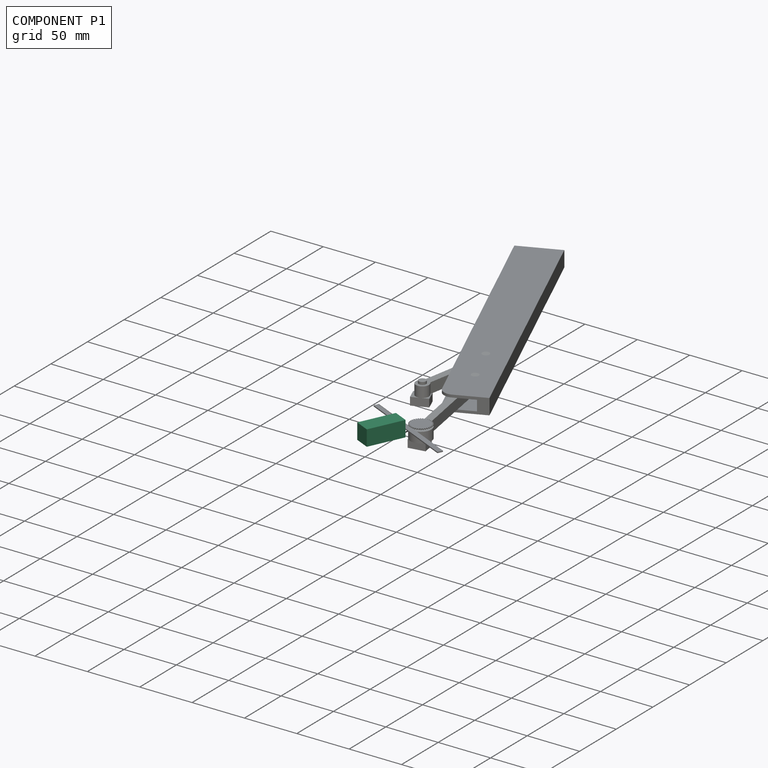
[diagram: component P1 — assembled]
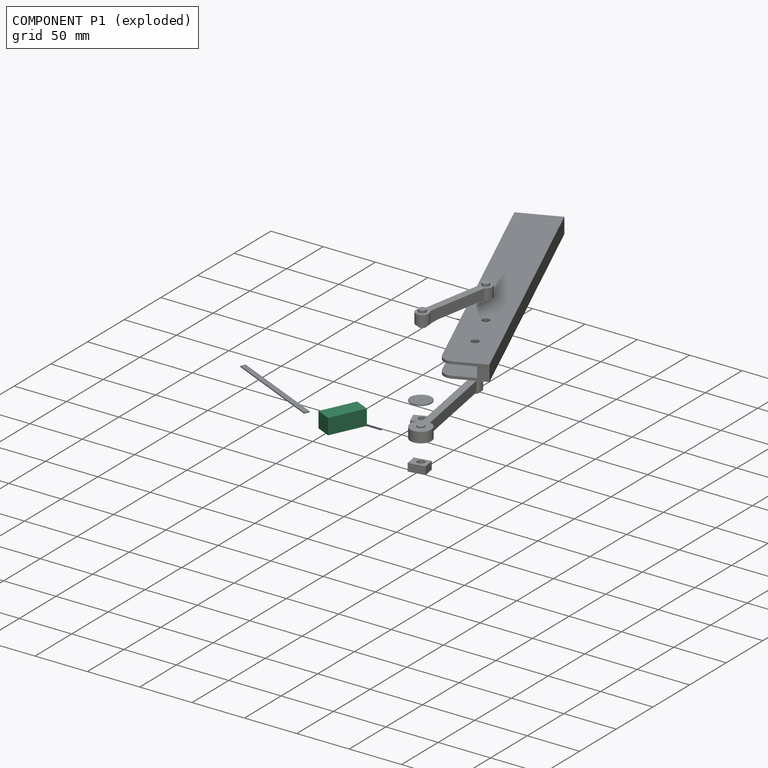
[diagram: component P1 — exploded]
COMPONENT P1 — recipe-attached (CADFS 00549050, mesh-verified: the recipe's output STEP matches this component's geometry to below the mesh-comparison resolution (tessellation chordal tolerance ~0.0614 mm)).
Held by: SLIDER mate "Slider 1" to P7.
Construction recipe (FeatureScript — the CAD program that rebuilds this solid; sketch coordinates are in the units given by the * unit suffixes, e.g. mm):

FeatureScript 1511;
import(path : "onshape/std/geometry.fs", version : "1511.0");
import(path : "onshape/std/common.fs", version : "1511.0");
const mm = millimeter;
const VERTEX = EntityType.VERTEX;
const EDGE = EntityType.EDGE;
const FACE = EntityType.FACE;
const BODY = EntityType.BODY;
function v(x, y){return vector(x, y);}
function OD(order){return orderDisambiguation(order);}
function OSD(set){return originalSetDisambiguation(set);}
function TD(topology){return topologyDisambiguation(topology);}
function TDD(query){return trueDependencyDisambiguation(query);}
function sQuery(a, b, c) {return sketchEntityQuery(a, b, c);}

annotation { "Feature Type Name" : "Feature", "Feature Type Description" : "" }
export const myFeature = defineFeature(function(context is Context, id is Id, definition is map)
    precondition{}
    {
        {
            var Q0;
            Q0=qCreatedBy(makeId("Top.planeOp"),FACE);
            var sketch = newSketch(context, id + "F0", { "sketchPlane" : qUnion([Q0])});
            skLineSegment(sketch, "E0.bottom", {"start": v(-60.2, 41.01) * mm, "end": v(-45.2, 41.01) * mm});
            skLineSegment(sketch, "E0.top", {"start": v(-60.2, 6.01) * mm, "end": v(-45.2, 6.01) * mm});
            skLineSegment(sketch, "E0.left", {"start": v(-60.2, 41.01) * mm, "end": v(-60.2, 6.01) * mm});
            skLineSegment(sketch, "E0.right", {"start": v(-45.2, 41.01) * mm, "end": v(-45.2, 6.01) * mm});
            skSolve(sketch);
        }
        {
            var Q0;
            Q0=makeQuery(id+"F0.imprint","IMPRINT",FACE,{"disambiguationData":[TD([[makeQuery(id+"F0.imprint","IMPRINT",EDGE,{"derivedFrom":sQuery(id+"F0.wireOp",EDGE,"E0.bottom")}),-1.0]])]});
            extrude(context, id + "F1", {"entities" : qUnion([Q0]), "endBound" : BoundingType.SYMMETRIC, "depth" : 15 * mm, "offsetDistance" : 25 * mm});
        }
    });
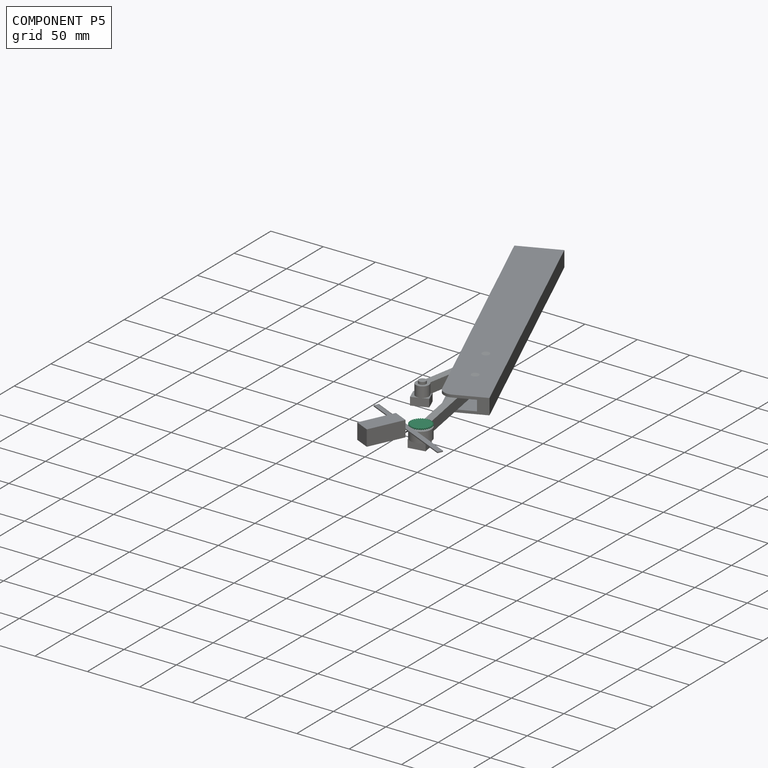
[diagram: component P5 — assembled]
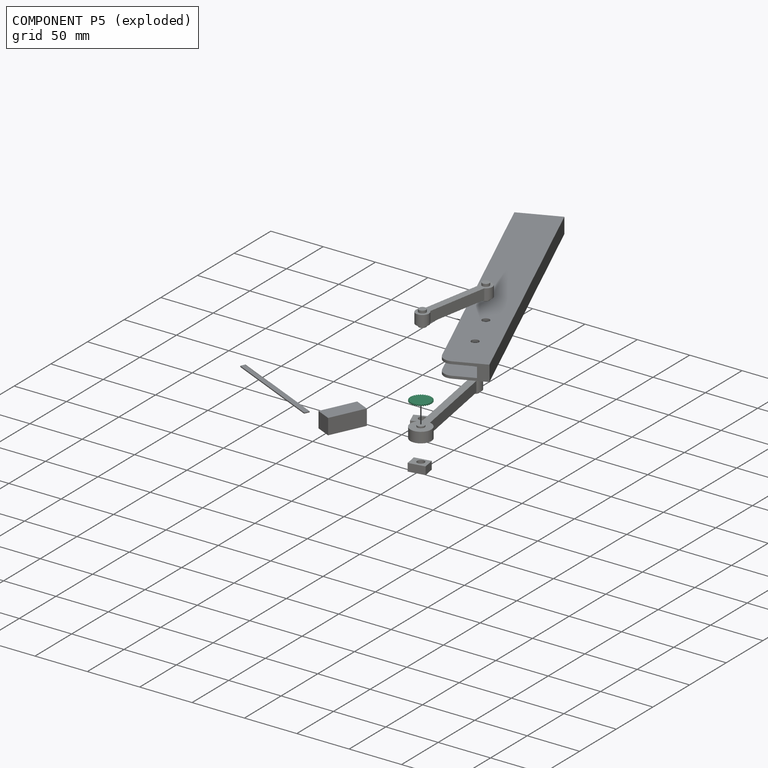
[diagram: component P5 — exploded]
COMPONENT P5 — recipe-attached (CADFS 00549052, mesh-verified: the recipe's output STEP matches this component's geometry to below the mesh-comparison resolution (tessellation chordal tolerance ~0.0424 mm)).
Held by: FASTENED mate "Fastened 1" to P6.
Construction recipe (FeatureScript — the CAD program that rebuilds this solid; sketch coordinates are in the units given by the * unit suffixes, e.g. mm):

FeatureScript 1511;
import(path : "onshape/std/geometry.fs", version : "1511.0");
import(path : "onshape/std/common.fs", version : "1511.0");
const mm = millimeter;
const VERTEX = EntityType.VERTEX;
const EDGE = EntityType.EDGE;
const FACE = EntityType.FACE;
const BODY = EntityType.BODY;
function v(x, y){return vector(x, y);}
function OD(order){return orderDisambiguation(order);}
function OSD(set){return originalSetDisambiguation(set);}
function TD(topology){return topologyDisambiguation(topology);}
function TDD(query){return trueDependencyDisambiguation(query);}
function sQuery(a, b, c) {return sketchEntityQuery(a, b, c);}

annotation { "Feature Type Name" : "Feature", "Feature Type Description" : "" }
export const myFeature = defineFeature(function(context is Context, id is Id, definition is map)
    precondition{}
    {
        {
            var Q0;
            Q0=qCreatedBy(makeId("Top.planeOp"),FACE);
            var sketch = newSketch(context, id + "F0", { "sketchPlane" : qUnion([Q0])});
            skCircle(sketch, "E0", {"center": v(-41.3, 19.5) * mm, "radius": 10 * mm});
            skLineSegment(sketch, "E1", {"start": v(-41.3, 19.5) * mm, "end": v(-41.3, 32.24) * mm, "construction": true});
            skLineSegment(sketch, "E2", {"start": v(-41.86, 29.5) * mm, "end": v(-41.6, 28.5) * mm});
            skLineSegment(sketch, "E3", {"start": v(-41.6, 28.5) * mm, "end": v(-41.3, 28.5) * mm});
            skLineSegment(sketch, "E4.MirrorCS", {"start": v(-41, 28.5) * mm, "end": v(-41.3, 28.5) * mm});
            skLineSegment(sketch, "E5.MirrorCS", {"start": v(-40.72, 29.5) * mm, "end": v(-41, 28.5) * mm});
            skLineSegment(sketch, "E6.1.0", {"start": v(-42.56, 29.43) * mm, "end": v(-42.65, 28.4) * mm});
            skLineSegment(sketch, "E6.1.1", {"start": v(-42.65, 28.4) * mm, "end": v(-42.94, 28.35) * mm});
            skLineSegment(sketch, "E6.1.2", {"start": v(-43.24, 28.3) * mm, "end": v(-42.94, 28.35) * mm});
            skLineSegment(sketch, "E6.1.3", {"start": v(-43.69, 29.22) * mm, "end": v(-43.24, 28.3) * mm});
            skLineSegment(sketch, "E6.2.0", {"start": v(-44.36, 29.02) * mm, "end": v(-44.26, 28) * mm});
            skLineSegment(sketch, "E6.2.1", {"start": v(-44.26, 28) * mm, "end": v(-44.54, 27.9) * mm});
            skLineSegment(sketch, "E6.2.2", {"start": v(-44.82, 27.8) * mm, "end": v(-44.54, 27.9) * mm});
            skLineSegment(sketch, "E6.2.3", {"start": v(-45.43, 28.61) * mm, "end": v(-44.82, 27.8) * mm});
            skLineSegment(sketch, "E6.3.0", {"start": v(-46.06, 28.3) * mm, "end": v(-45.77, 27.32) * mm});
            skLineSegment(sketch, "E6.3.1", {"start": v(-45.77, 27.32) * mm, "end": v(-46.03, 27.16) * mm});
            skLineSegment(sketch, "E6.3.2", {"start": v(-46.28, 27) * mm, "end": v(-46.03, 27.16) * mm});
            skLineSegment(sketch, "E6.3.3", {"start": v(-47.03, 27.7) * mm, "end": v(-46.28, 27) * mm});
            skLineSegment(sketch, "E6.4.0", {"start": v(-47.6, 27.27) * mm, "end": v(-47.13, 26.36) * mm});
            skLineSegment(sketch, "E6.4.1", {"start": v(-47.13, 26.36) * mm, "end": v(-47.35, 26.16) * mm});
            skLineSegment(sketch, "E6.4.2", {"start": v(-47.58, 25.96) * mm, "end": v(-47.35, 26.16) * mm});
            skLineSegment(sketch, "E6.4.3", {"start": v(-48.44, 26.5) * mm, "end": v(-47.58, 25.96) * mm});
            skLineSegment(sketch, "E6.5.0", {"start": v(-48.91, 25.98) * mm, "end": v(-48.3, 25.17) * mm});
            skLineSegment(sketch, "E6.5.1", {"start": v(-48.3, 25.17) * mm, "end": v(-48.47, 24.93) * mm});
            skLineSegment(sketch, "E6.5.2", {"start": v(-48.65, 24.7) * mm, "end": v(-48.47, 24.93) * mm});
            skLineSegment(sketch, "E6.5.3", {"start": v(-49.6, 25.07) * mm, "end": v(-48.65, 24.7) * mm});
            skLineSegment(sketch, "E6.6.0", {"start": v(-49.97, 24.47) * mm, "end": v(-49.21, 23.79) * mm});
            skLineSegment(sketch, "E6.6.1", {"start": v(-49.21, 23.79) * mm, "end": v(-49.35, 23.52) * mm});
            skLineSegment(sketch, "E6.6.2", {"start": v(-49.48, 23.25) * mm, "end": v(-49.35, 23.52) * mm});
            skLineSegment(sketch, "E6.6.3", {"start": v(-50.48, 23.45) * mm, "end": v(-49.48, 23.25) * mm});
            skLineSegment(sketch, "E6.7.0", {"start": v(-50.74, 22.79) * mm, "end": v(-49.87, 22.26) * mm});
            skLineSegment(sketch, "E6.7.1", {"start": v(-49.87, 22.26) * mm, "end": v(-49.95, 21.97) * mm});
            skLineSegment(sketch, "E6.7.2", {"start": v(-50.03, 21.68) * mm, "end": v(-49.95, 21.97) * mm});
            skLineSegment(sketch, "E6.7.3", {"start": v(-51.05, 21.69) * mm, "end": v(-50.03, 21.68) * mm});
            skLineSegment(sketch, "E6.8.0", {"start": v(-51.18, 21) * mm, "end": v(-50.22, 20.64) * mm});
            skLineSegment(sketch, "E6.8.1", {"start": v(-50.22, 20.64) * mm, "end": v(-50.25, 20.34) * mm});
            skLineSegment(sketch, "E6.8.2", {"start": v(-50.28, 20.04) * mm, "end": v(-50.25, 20.34) * mm});
            skLineSegment(sketch, "E6.8.3", {"start": v(-51.28, 19.86) * mm, "end": v(-50.28, 20.04) * mm});
            skLineSegment(sketch, "E6.9.0", {"start": v(-51.28, 19.15) * mm, "end": v(-50.28, 18.98) * mm});
            skLineSegment(sketch, "E6.9.1", {"start": v(-50.28, 18.98) * mm, "end": v(-50.25, 18.68) * mm});
            skLineSegment(sketch, "E6.9.2", {"start": v(-50.22, 18.38) * mm, "end": v(-50.25, 18.68) * mm});
            skLineSegment(sketch, "E6.9.3", {"start": v(-51.18, 18.02) * mm, "end": v(-50.22, 18.38) * mm});
            skLineSegment(sketch, "E6.10.0", {"start": v(-51.05, 17.32) * mm, "end": v(-50.03, 17.33) * mm});
            skLineSegment(sketch, "E6.10.1", {"start": v(-50.03, 17.33) * mm, "end": v(-49.95, 17.04) * mm});
            skLineSegment(sketch, "E6.10.2", {"start": v(-49.87, 16.76) * mm, "end": v(-49.95, 17.04) * mm});
            skLineSegment(sketch, "E6.10.3", {"start": v(-50.74, 16.23) * mm, "end": v(-49.87, 16.76) * mm});
            skLineSegment(sketch, "E6.11.0", {"start": v(-50.48, 15.57) * mm, "end": v(-49.48, 15.76) * mm});
            skLineSegment(sketch, "E6.11.1", {"start": v(-49.48, 15.76) * mm, "end": v(-49.35, 15.5) * mm});
            skLineSegment(sketch, "E6.11.2", {"start": v(-49.21, 15.23) * mm, "end": v(-49.35, 15.5) * mm});
            skLineSegment(sketch, "E6.11.3", {"start": v(-49.97, 14.55) * mm, "end": v(-49.21, 15.23) * mm});
            skLineSegment(sketch, "E6.12.0", {"start": v(-49.6, 13.95) * mm, "end": v(-48.65, 14.32) * mm});
            skLineSegment(sketch, "E6.12.1", {"start": v(-48.65, 14.32) * mm, "end": v(-48.47, 14.08) * mm});
            skLineSegment(sketch, "E6.12.2", {"start": v(-48.3, 13.84) * mm, "end": v(-48.47, 14.08) * mm});
            skLineSegment(sketch, "E6.12.3", {"start": v(-48.91, 13.03) * mm, "end": v(-48.3, 13.84) * mm});
            skLineSegment(sketch, "E6.13.0", {"start": v(-48.44, 12.51) * mm, "end": v(-47.58, 13.06) * mm});
            skLineSegment(sketch, "E6.13.1", {"start": v(-47.58, 13.06) * mm, "end": v(-47.35, 12.86) * mm});
            skLineSegment(sketch, "E6.13.2", {"start": v(-47.13, 12.65) * mm, "end": v(-47.35, 12.86) * mm});
            skLineSegment(sketch, "E6.13.3", {"start": v(-47.6, 11.74) * mm, "end": v(-47.13, 12.65) * mm});
            skLineSegment(sketch, "E6.14.0", {"start": v(-47.03, 11.32) * mm, "end": v(-46.28, 12.01) * mm});
            skLineSegment(sketch, "E6.14.1", {"start": v(-46.28, 12.01) * mm, "end": v(-46.03, 11.86) * mm});
            skLineSegment(sketch, "E6.14.2", {"start": v(-45.77, 11.7) * mm, "end": v(-46.03, 11.86) * mm});
            skLineSegment(sketch, "E6.14.3", {"start": v(-46.06, 10.72) * mm, "end": v(-45.77, 11.7) * mm});
            skLineSegment(sketch, "E6.15.0", {"start": v(-45.43, 10.4) * mm, "end": v(-44.82, 11.22) * mm});
            skLineSegment(sketch, "E6.15.1", {"start": v(-44.82, 11.22) * mm, "end": v(-44.54, 11.12) * mm});
            skLineSegment(sketch, "E6.15.2", {"start": v(-44.26, 11) * mm, "end": v(-44.54, 11.12) * mm});
            skLineSegment(sketch, "E6.15.3", {"start": v(-44.36, 10) * mm, "end": v(-44.26, 11) * mm});
            skLineSegment(sketch, "E6.16.0", {"start": v(-43.69, 9.8) * mm, "end": v(-43.24, 10.72) * mm});
            skLineSegment(sketch, "E6.16.1", {"start": v(-43.24, 10.72) * mm, "end": v(-42.94, 10.66) * mm});
            skLineSegment(sketch, "E6.16.2", {"start": v(-42.65, 10.6) * mm, "end": v(-42.94, 10.66) * mm});
            skLineSegment(sketch, "E6.16.3", {"start": v(-42.56, 9.59) * mm, "end": v(-42.65, 10.6) * mm});
            skLineSegment(sketch, "E6.17.0", {"start": v(-41.86, 9.52) * mm, "end": v(-41.6, 10.5) * mm});
            skLineSegment(sketch, "E6.17.1", {"start": v(-41.6, 10.5) * mm, "end": v(-41.3, 10.5) * mm});
            skLineSegment(sketch, "E6.17.2", {"start": v(-41, 10.5) * mm, "end": v(-41.3, 10.5) * mm});
            skLineSegment(sketch, "E6.17.3", {"start": v(-40.72, 9.52) * mm, "end": v(-41, 10.5) * mm});
            skLineSegment(sketch, "E6.18.0", {"start": v(-40.02, 9.59) * mm, "end": v(-39.93, 10.6) * mm});
            skLineSegment(sketch, "E6.18.1", {"start": v(-39.93, 10.6) * mm, "end": v(-39.64, 10.66) * mm});
            skLineSegment(sketch, "E6.18.2", {"start": v(-39.34, 10.72) * mm, "end": v(-39.64, 10.66) * mm});
            skLineSegment(sketch, "E6.18.3", {"start": v(-38.9, 9.8) * mm, "end": v(-39.34, 10.72) * mm});
            skLineSegment(sketch, "E6.19.0", {"start": v(-38.22, 10) * mm, "end": v(-38.32, 11) * mm});
            skLineSegment(sketch, "E6.19.1", {"start": v(-38.32, 11) * mm, "end": v(-38.04, 11.12) * mm});
            skLineSegment(sketch, "E6.19.2", {"start": v(-37.76, 11.22) * mm, "end": v(-38.04, 11.12) * mm});
            skLineSegment(sketch, "E6.19.3", {"start": v(-37.15, 10.4) * mm, "end": v(-37.76, 11.22) * mm});
            skLineSegment(sketch, "E6.20.0", {"start": v(-36.52, 10.72) * mm, "end": v(-36.8, 11.7) * mm});
            skLineSegment(sketch, "E6.20.1", {"start": v(-36.8, 11.7) * mm, "end": v(-36.55, 11.86) * mm});
            skLineSegment(sketch, "E6.20.2", {"start": v(-36.3, 12.01) * mm, "end": v(-36.55, 11.86) * mm});
            skLineSegment(sketch, "E6.20.3", {"start": v(-35.55, 11.32) * mm, "end": v(-36.3, 12.01) * mm});
            skLineSegment(sketch, "E6.21.0", {"start": v(-34.99, 11.74) * mm, "end": v(-35.45, 12.65) * mm});
            skLineSegment(sketch, "E6.21.1", {"start": v(-35.45, 12.65) * mm, "end": v(-35.23, 12.86) * mm});
            skLineSegment(sketch, "E6.21.2", {"start": v(-35, 13.06) * mm, "end": v(-35.23, 12.86) * mm});
            skLineSegment(sketch, "E6.21.3", {"start": v(-34.14, 12.51) * mm, "end": v(-35, 13.06) * mm});
            skLineSegment(sketch, "E6.22.0", {"start": v(-33.67, 13.03) * mm, "end": v(-34.3, 13.84) * mm});
            skLineSegment(sketch, "E6.22.1", {"start": v(-34.3, 13.84) * mm, "end": v(-34.1, 14.08) * mm});
            skLineSegment(sketch, "E6.22.2", {"start": v(-33.93, 14.32) * mm, "end": v(-34.1, 14.08) * mm});
            skLineSegment(sketch, "E6.22.3", {"start": v(-32.98, 13.95) * mm, "end": v(-33.93, 14.32) * mm});
            skLineSegment(sketch, "E6.23.0", {"start": v(-32.6, 14.55) * mm, "end": v(-33.37, 15.23) * mm});
            skLineSegment(sketch, "E6.23.1", {"start": v(-33.37, 15.23) * mm, "end": v(-33.23, 15.5) * mm});
            skLineSegment(sketch, "E6.23.2", {"start": v(-33.1, 15.76) * mm, "end": v(-33.23, 15.5) * mm});
            skLineSegment(sketch, "E6.23.3", {"start": v(-32.1, 15.57) * mm, "end": v(-33.1, 15.76) * mm});
            skLineSegment(sketch, "E6.24.0", {"start": v(-31.84, 16.23) * mm, "end": v(-32.72, 16.76) * mm});
            skLineSegment(sketch, "E6.24.1", {"start": v(-32.72, 16.76) * mm, "end": v(-32.64, 17.04) * mm});
            skLineSegment(sketch, "E6.24.2", {"start": v(-32.55, 17.33) * mm, "end": v(-32.64, 17.04) * mm});
            skLineSegment(sketch, "E6.24.3", {"start": v(-31.53, 17.32) * mm, "end": v(-32.55, 17.33) * mm});
            skLineSegment(sketch, "E6.25.0", {"start": v(-31.4, 18.02) * mm, "end": v(-32.36, 18.38) * mm});
            skLineSegment(sketch, "E6.25.1", {"start": v(-32.36, 18.38) * mm, "end": v(-32.33, 18.68) * mm});
            skLineSegment(sketch, "E6.25.2", {"start": v(-32.3, 18.98) * mm, "end": v(-32.33, 18.68) * mm});
            skLineSegment(sketch, "E6.25.3", {"start": v(-31.3, 19.15) * mm, "end": v(-32.3, 18.98) * mm});
            skLineSegment(sketch, "E6.26.0", {"start": v(-31.3, 19.86) * mm, "end": v(-32.3, 20.04) * mm});
            skLineSegment(sketch, "E6.26.1", {"start": v(-32.3, 20.04) * mm, "end": v(-32.33, 20.34) * mm});
            skLineSegment(sketch, "E6.26.2", {"start": v(-32.36, 20.64) * mm, "end": v(-32.33, 20.34) * mm});
            skLineSegment(sketch, "E6.26.3", {"start": v(-31.4, 21) * mm, "end": v(-32.36, 20.64) * mm});
            skLineSegment(sketch, "E6.27.0", {"start": v(-31.53, 21.69) * mm, "end": v(-32.55, 21.68) * mm});
            skLineSegment(sketch, "E6.27.1", {"start": v(-32.55, 21.68) * mm, "end": v(-32.64, 21.97) * mm});
            skLineSegment(sketch, "E6.27.2", {"start": v(-32.72, 22.26) * mm, "end": v(-32.64, 21.97) * mm});
            skLineSegment(sketch, "E6.27.3", {"start": v(-31.84, 22.79) * mm, "end": v(-32.72, 22.26) * mm});
            skLineSegment(sketch, "E6.28.0", {"start": v(-32.1, 23.45) * mm, "end": v(-33.1, 23.25) * mm});
            skLineSegment(sketch, "E6.28.1", {"start": v(-33.1, 23.25) * mm, "end": v(-33.23, 23.52) * mm});
            skLineSegment(sketch, "E6.28.2", {"start": v(-33.37, 23.79) * mm, "end": v(-33.23, 23.52) * mm});
            skLineSegment(sketch, "E6.28.3", {"start": v(-32.6, 24.47) * mm, "end": v(-33.37, 23.79) * mm});
            skLineSegment(sketch, "E6.29.0", {"start": v(-32.98, 25.07) * mm, "end": v(-33.93, 24.7) * mm});
            skLineSegment(sketch, "E6.29.1", {"start": v(-33.93, 24.7) * mm, "end": v(-34.1, 24.93) * mm});
            skLineSegment(sketch, "E6.29.2", {"start": v(-34.3, 25.17) * mm, "end": v(-34.1, 24.93) * mm});
            skLineSegment(sketch, "E6.29.3", {"start": v(-33.67, 25.98) * mm, "end": v(-34.3, 25.17) * mm});
            skLineSegment(sketch, "E6.30.0", {"start": v(-34.14, 26.5) * mm, "end": v(-35, 25.96) * mm});
            skLineSegment(sketch, "E6.30.1", {"start": v(-35, 25.96) * mm, "end": v(-35.23, 26.16) * mm});
            skLineSegment(sketch, "E6.30.2", {"start": v(-35.45, 26.36) * mm, "end": v(-35.23, 26.16) * mm});
            skLineSegment(sketch, "E6.30.3", {"start": v(-34.99, 27.27) * mm, "end": v(-35.45, 26.36) * mm});
            skLineSegment(sketch, "E6.31.0", {"start": v(-35.55, 27.7) * mm, "end": v(-36.3, 27) * mm});
            skLineSegment(sketch, "E6.31.1", {"start": v(-36.3, 27) * mm, "end": v(-36.55, 27.16) * mm});
            skLineSegment(sketch, "E6.31.2", {"start": v(-36.8, 27.32) * mm, "end": v(-36.55, 27.16) * mm});
            skLineSegment(sketch, "E6.31.3", {"start": v(-36.52, 28.3) * mm, "end": v(-36.8, 27.32) * mm});
            skLineSegment(sketch, "E7.3.32.0", {"start": v(-37.76, 27.8) * mm, "end": v(-38.04, 27.9) * mm});
            skLineSegment(sketch, "E7.5.32.0", {"start": v(-37.15, 28.61) * mm, "end": v(-37.76, 27.8) * mm});
            skLineSegment(sketch, "E7.6.32.0", {"start": v(-38.32, 28) * mm, "end": v(-38.04, 27.9) * mm});
            skLineSegment(sketch, "E7.9.32.0", {"start": v(-38.22, 29.02) * mm, "end": v(-38.32, 28) * mm});
            skLineSegment(sketch, "E7.3.33.0", {"start": v(-39.34, 28.3) * mm, "end": v(-39.64, 28.35) * mm});
            skLineSegment(sketch, "E7.5.33.0", {"start": v(-38.9, 29.22) * mm, "end": v(-39.34, 28.3) * mm});
            skLineSegment(sketch, "E7.6.33.0", {"start": v(-39.93, 28.4) * mm, "end": v(-39.64, 28.35) * mm});
            skLineSegment(sketch, "E7.9.33.0", {"start": v(-40.02, 29.43) * mm, "end": v(-39.93, 28.4) * mm});
            skSolve(sketch);
        }
        {
            var Q0;
            {var subQ29=sQuery(id+"F0.wireOp",EDGE,"E2");Q0=makeQuery(id+"F0.imprint","IMPRINT",FACE,{"disambiguationData":[TD([[makeQuery(id+"F0.imprint","IMPRINT",EDGE,{"derivedFrom":subQ29}),-1.0]])]});}
            extrude(context, id + "F1", {"entities" : qUnion([Q0]), "depth" : 1 * mm, "offsetDistance" : 25 * mm});
        }
    });
PROVENANCE & LICENSES
Assembly (occurrences, transforms, mates, per-part STEP geometry): AutoMate dataset, Zenodo record 7776208, CC0.
Construction recipes: CADFS (HuggingFace VladPyatov/CADFS, CC-BY-4.0, layered over the ABC dataset), FeatureScript reconstruction programs keyed by ABC model id.
Join: ABC meta listings map ABC model id -> Onshape documentId; within a shared document, parts are matched by geometric signature (bounding-box dims + volume at 0.1% relative tolerance, exact B-rep face/solid counts).
Verification: 6 of this assembly's 8 components carry a recipe attachment, and every attachment is mesh-verified: the CADFS STEP and the AutoMate member STEP were compared as meshes in their shared local frame (symmetric sampled-point-to-mesh distance); worst across the 6 attachments: below the mesh-comparison resolution (tessellation chordal tolerance ~0.425 mm) on a 283 mm part.
Renders: orthographic iso camera (az 35 / el 25); the floor grid conveys scale (grid pitch printed in each image; no ruler). In the exploded view each component is displaced by its stored offset vector: the offsets alone carry the explosion direction (mate normal/axis signs are not orientation cues and do not encode it), and separation distances are assigned per mate-chain, not proportionally to assembly-order depth.
